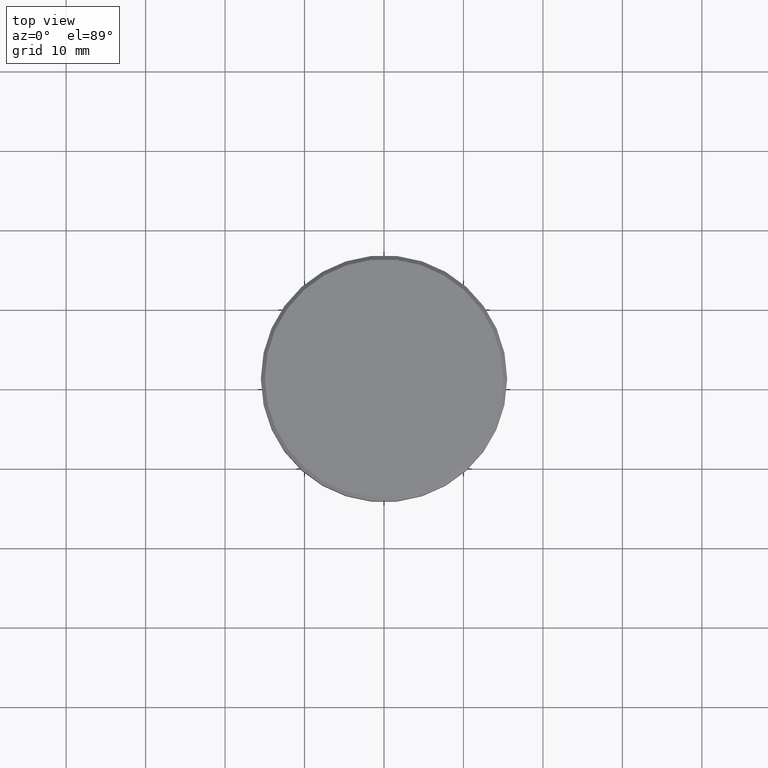
[diagram: clean part render]
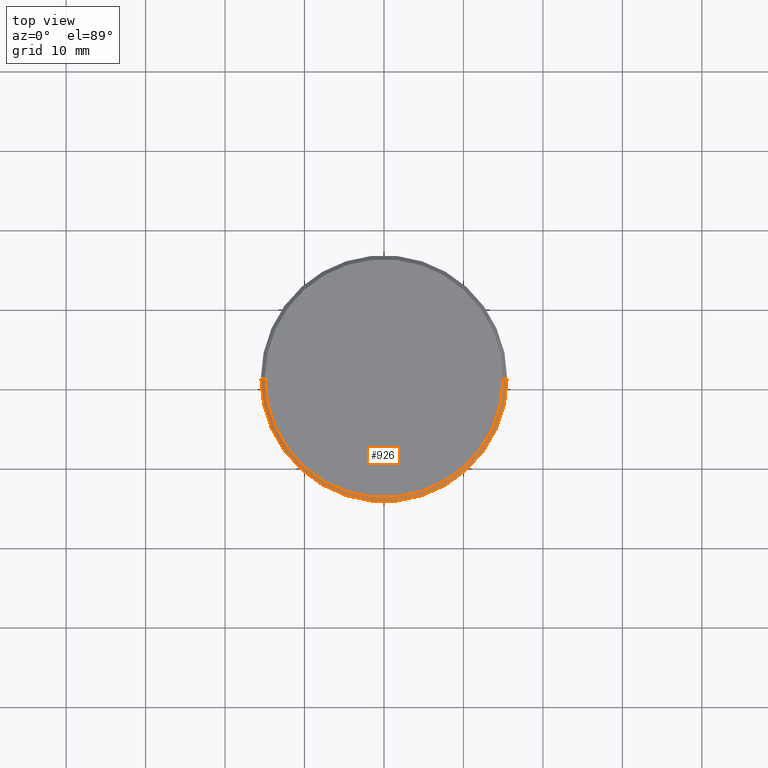
[diagram: same view with one face highlighted and labeled with its STEP entity id]
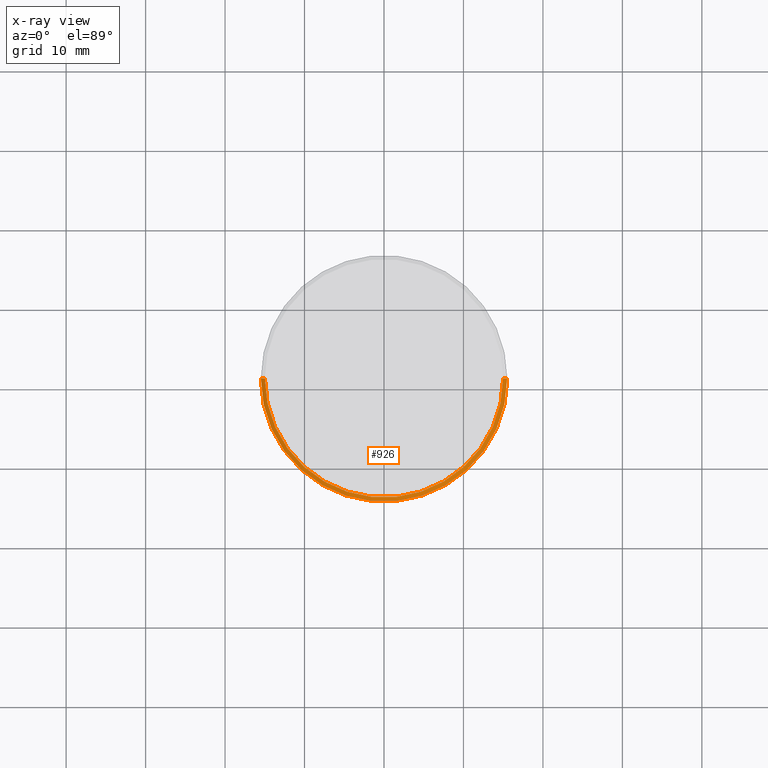
[diagram: x-ray of the same camera — body ghosted, the highlighted face saturated]
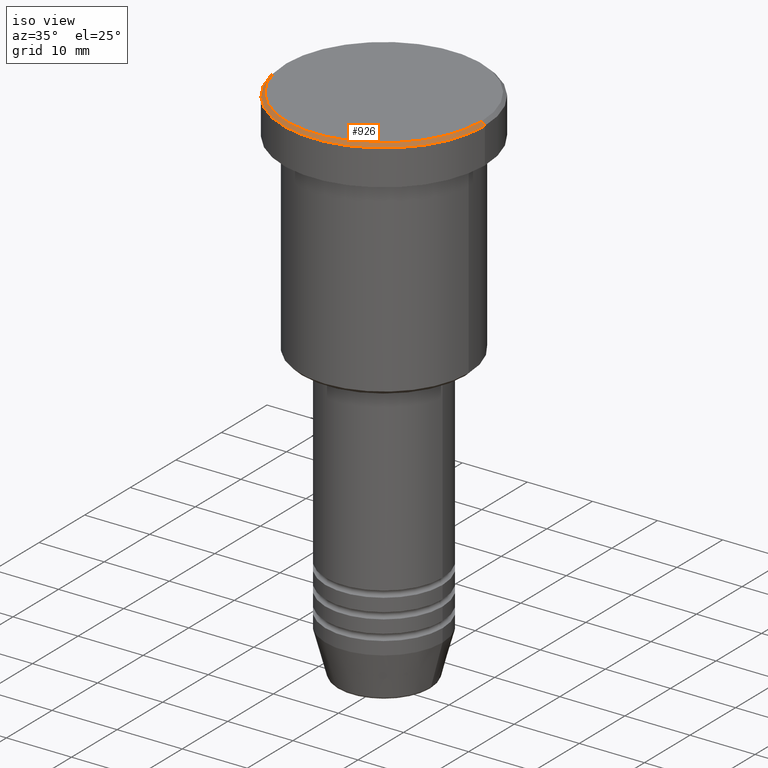
[diagram: same view with one face highlighted and labeled with its STEP entity id]
A machine part, top view. The second image highlights one B-rep face of the part: STEP entity #926.
The next image is the same camera in x-ray: the body ghosted, the highlighted face saturated — about 0% of this face is hidden behind the body in this view.
A second angle (iso view) of the same face is appended — the face is thin or edge-on in the first view.
In plain terms, the highlighted conical surface has half-angle 45 deg.
Its self-contained STEP definition (entity closure, byte-faithful):
#6 = CARTESIAN_POINT ( 'NONE',  ( 15.50000000000000000, 0.000000000000000000, -0.5000000000000125455 ) ) ;
#66 = FACE_OUTER_BOUND ( 'NONE', #1015, .T. ) ;
#67 = CARTESIAN_POINT ( 'NONE',  ( 0.000000000000000000, 0.000000000000000000, 0.000000000000000000 ) ) ;
#105 = EDGE_CURVE ( 'NONE', #1061, #455, #532, .T. ) ;
#156 = EDGE_CURVE ( 'NONE', #218, #455, #1099, .T. ) ;
#174 = CARTESIAN_POINT ( 'NONE',  ( 14.99999999999998579, 1.867586368699712587E-15, 0.000000000000000000 ) ) ;
#176 = DIRECTION ( 'NONE',  ( 0.7071067811865487940, 8.659560562354950115E-17, -0.7071067811865463515 ) ) ;
#218 = VERTEX_POINT ( 'NONE', #844 ) ;
#243 = CARTESIAN_POINT ( 'NONE',  ( 0.000000000000000000, 0.000000000000000000, -0.5000000000000125455 ) ) ;
#267 = ORIENTED_EDGE ( 'NONE', *, *, #105, .F. ) ;
#375 = DIRECTION ( 'NONE',  ( -0.7071067811865487940, 0.000000000000000000, -0.7071067811865463515 ) ) ;
#405 = EDGE_CURVE ( 'NONE', #1167, #1061, #1176, .T. ) ;
#410 = CARTESIAN_POINT ( 'NONE',  ( -15.50000000000000000, 1.898202538678397557E-15, -0.5000000000000125455 ) ) ;
#441 = ORIENTED_EDGE ( 'NONE', *, *, #405, .F. ) ;
#455 = VERTEX_POINT ( 'NONE', #410 ) ;
#478 = AXIS2_PLACEMENT_3D ( 'NONE', #243, #1022, #848 ) ;
#532 = CIRCLE ( 'NONE', #478, 15.50000000000000000 ) ;
#536 = CONICAL_SURFACE ( 'NONE', #892, 14.99999999999998579, 0.7853981633974500554 ) ;
#584 = VECTOR ( 'NONE', #176, 1000.000000000000000 ) ;
#596 = DIRECTION ( 'NONE',  ( 0.000000000000000000, 0.000000000000000000, -1.000000000000000000 ) ) ;
#644 = VECTOR ( 'NONE', #375, 1000.000000000000000 ) ;
#695 = CARTESIAN_POINT ( 'NONE',  ( 0.000000000000000000, 0.000000000000000000, 0.000000000000000000 ) ) ;
#707 = ORIENTED_EDGE ( 'NONE', *, *, #834, .F. ) ;
#713 = DIRECTION ( 'NONE',  ( 1.000000000000000000, 0.000000000000000000, 0.000000000000000000 ) ) ;
#803 = CARTESIAN_POINT ( 'NONE',  ( 14.99999999999998579, 1.836970198721028011E-15, 0.000000000000000000 ) ) ;
#832 = CARTESIAN_POINT ( 'NONE',  ( -14.99999999999998579, 0.000000000000000000, 0.000000000000000000 ) ) ;
#834 = EDGE_CURVE ( 'NONE', #218, #1167, #907, .T. ) ;
#844 = CARTESIAN_POINT ( 'NONE',  ( -14.99999999999998579, 0.000000000000000000, 0.000000000000000000 ) ) ;
#848 = DIRECTION ( 'NONE',  ( 1.000000000000000000, 0.000000000000000000, 0.000000000000000000 ) ) ;
#892 = AXIS2_PLACEMENT_3D ( 'NONE', #695, #596, #905 ) ;
#905 = DIRECTION ( 'NONE',  ( -1.000000000000000000, 0.000000000000000000, 0.000000000000000000 ) ) ;
#907 = CIRCLE ( 'NONE', #1136, 14.99999999999998579 ) ;
#926 = ADVANCED_FACE ( 'NONE', ( #66 ), #536, .T. ) ;
#1015 = EDGE_LOOP ( 'NONE', ( #441, #707, #1034, #267 ) ) ;
#1022 = DIRECTION ( 'NONE',  ( 0.000000000000000000, 0.000000000000000000, -1.000000000000000000 ) ) ;
#1034 = ORIENTED_EDGE ( 'NONE', *, *, #156, .T. ) ;
#1061 = VERTEX_POINT ( 'NONE', #6 ) ;
#1099 = LINE ( 'NONE', #832, #644 ) ;
#1136 = AXIS2_PLACEMENT_3D ( 'NONE', #67, #1166, #713 ) ;
#1166 = DIRECTION ( 'NONE',  ( -0.000000000000000000, -0.000000000000000000, 1.000000000000000000 ) ) ;
#1167 = VERTEX_POINT ( 'NONE', #174 ) ;
#1176 = LINE ( 'NONE', #803, #584 ) ;